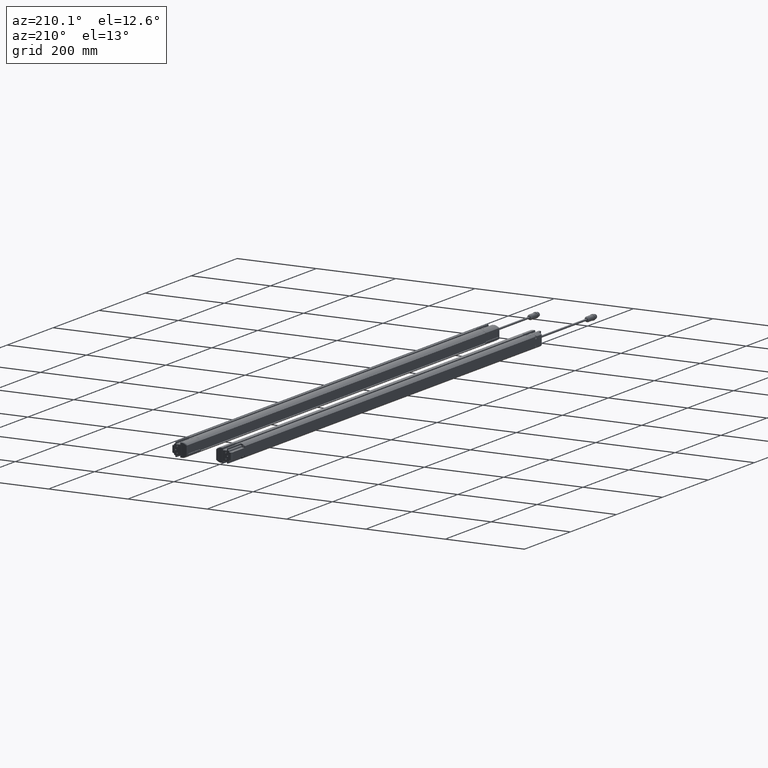
[diagram: clean part render]
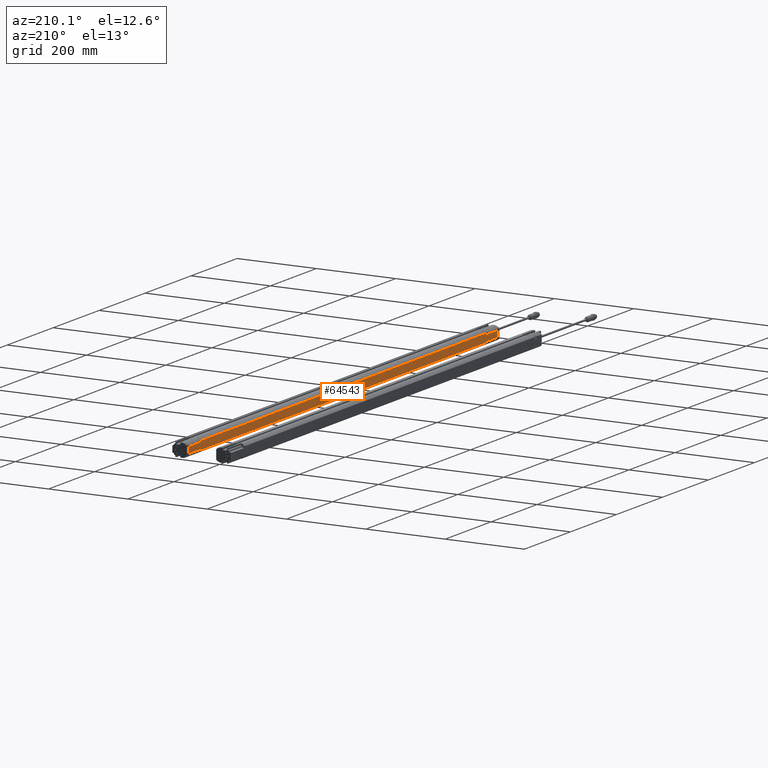
[diagram: same view with one face highlighted and labeled with its STEP entity id]
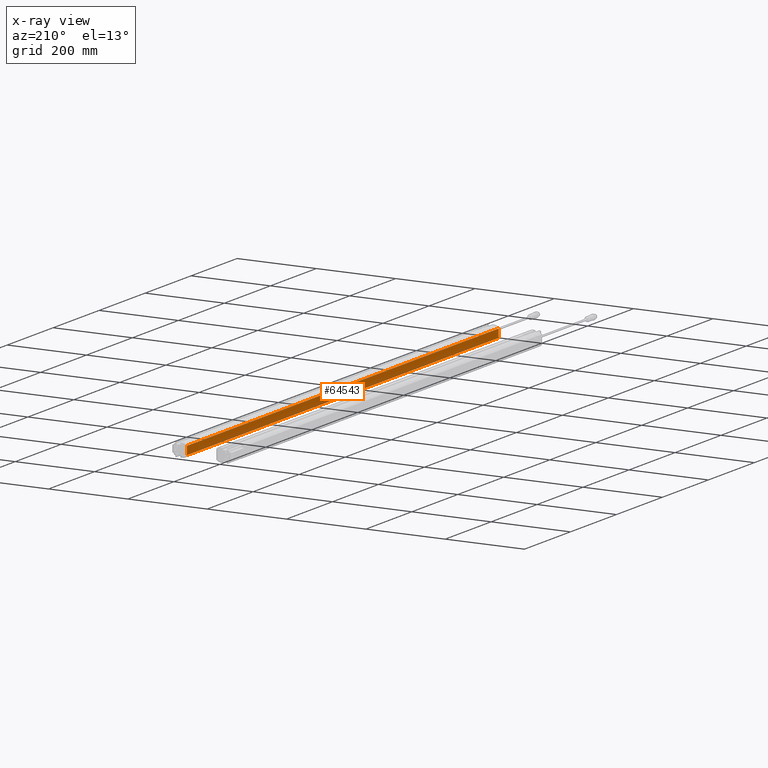
[diagram: x-ray of the same camera — body ghosted, the highlighted face saturated]
A machine part, auxiliary view. The second image highlights one B-rep face of the part: STEP entity #64543.
The next image is the same camera in x-ray: the body ghosted, the highlighted face saturated — about 0% of this face is hidden behind the body in this view.
In plain terms, the highlighted planar face has unit normal (1, -0, -0).
Its self-contained STEP definition (entity closure, byte-faithful):
#4911 = VECTOR ( 'NONE', #52173, 39.37007874015748143 ) ;
#10623 = EDGE_CURVE ( 'NONE', #32543, #44080, #92554, .T. ) ;
#13996 = VERTEX_POINT ( 'NONE', #25258 ) ;
#14626 = DIRECTION ( 'NONE',  ( 0.000000000000000000, 1.000000000000000000, -9.330999788449910017E-16 ) ) ;
#19889 = DIRECTION ( 'NONE',  ( 1.000000000000000000, -5.426399947000250142E-32, -5.815453938512729959E-17 ) ) ;
#20352 = CARTESIAN_POINT ( 'NONE',  ( 1.500000000000000222, 26.65354330708661834, 0.4133858267716268298 ) ) ;
#20843 = VERTEX_POINT ( 'NONE', #28256 ) ;
#25258 = CARTESIAN_POINT ( 'NONE',  ( 1.500000000000000222, -26.68307086614173329, -0.4133858267716299384 ) ) ;
#28142 = DIRECTION ( 'NONE',  ( -5.815453938512729959E-17, 0.000000000000000000, -1.000000000000000000 ) ) ;
#28256 = CARTESIAN_POINT ( 'NONE',  ( 1.500000000000000222, 26.65354330708661834, -0.4133858267716795099 ) ) ;
#29968 = CARTESIAN_POINT ( 'NONE',  ( 1.500000000000000222, 91.41732283464567388, -0.4133858267717401835 ) ) ;
#32543 = VERTEX_POINT ( 'NONE', #83164 ) ;
#34665 = LINE ( 'NONE', #42428, #73454 ) ;
#34962 = EDGE_LOOP ( 'NONE', ( #72187, #37747, #57869, #80795 ) ) ;
#35906 = EDGE_CURVE ( 'NONE', #20843, #13996, #100639, .T. ) ;
#37747 = ORIENTED_EDGE ( 'NONE', *, *, #10623, .T. ) ;
#42428 = CARTESIAN_POINT ( 'NONE',  ( 1.500000000000000222, -26.68307086614173329, -0.4133858267716299384 ) ) ;
#44080 = VERTEX_POINT ( 'NONE', #20352 ) ;
#49672 = DIRECTION ( 'NONE',  ( -5.815453938512729959E-17, -9.330999788449910017E-16, -1.000000000000000000 ) ) ;
#52173 = DIRECTION ( 'NONE',  ( 0.000000000000000000, 9.330999788449910017E-16, 1.000000000000000000 ) ) ;
#53081 = VECTOR ( 'NONE', #63507, 39.37007874015748143 ) ;
#57869 = ORIENTED_EDGE ( 'NONE', *, *, #58837, .F. ) ;
#58837 = EDGE_CURVE ( 'NONE', #20843, #44080, #59943, .T. ) ;
#59943 = LINE ( 'NONE', #91383, #4911 ) ;
#63507 = DIRECTION ( 'NONE',  ( 0.000000000000000000, -1.000000000000000000, 9.330999788449910017E-16 ) ) ;
#64543 = ADVANCED_FACE ( 'NONE', ( #90593 ), #91108, .F. ) ;
#66385 = CARTESIAN_POINT ( 'NONE',  ( 1.500000000000000222, 91.41732283464567388, -0.4133858267717401835 ) ) ;
#72187 = ORIENTED_EDGE ( 'NONE', *, *, #85652, .F. ) ;
#73454 = VECTOR ( 'NONE', #49672, 39.37007874015748143 ) ;
#77573 = CARTESIAN_POINT ( 'NONE',  ( 1.500000000000000222, 91.41732283464567388, 0.4133858267715669332 ) ) ;
#78657 = AXIS2_PLACEMENT_3D ( 'NONE', #66385, #19889, #28142 ) ;
#80795 = ORIENTED_EDGE ( 'NONE', *, *, #35906, .T. ) ;
#81654 = VECTOR ( 'NONE', #14626, 39.37007874015748143 ) ;
#83164 = CARTESIAN_POINT ( 'NONE',  ( 1.500000000000000222, -26.68307086614173329, 0.4133858267716772339 ) ) ;
#85652 = EDGE_CURVE ( 'NONE', #32543, #13996, #34665, .T. ) ;
#90593 = FACE_OUTER_BOUND ( 'NONE', #34962, .T. ) ;
#91108 = PLANE ( 'NONE',  #78657 ) ;
#91383 = CARTESIAN_POINT ( 'NONE',  ( 1.500000000000000222, 26.65354330708661834, -0.4133858267716795099 ) ) ;
#92554 = LINE ( 'NONE', #77573, #81654 ) ;
#100639 = LINE ( 'NONE', #29968, #53081 ) ;